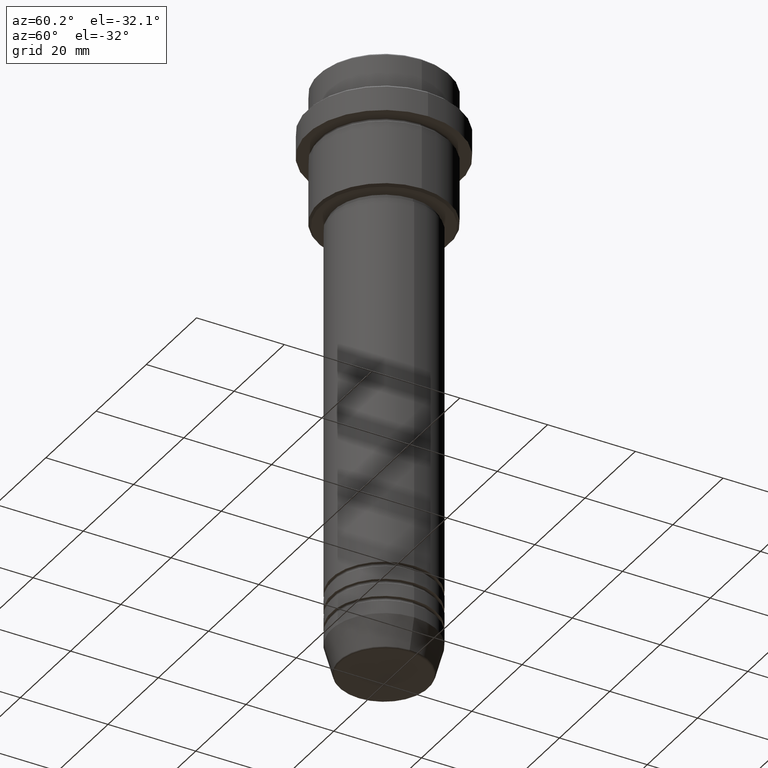
[diagram: clean part render]
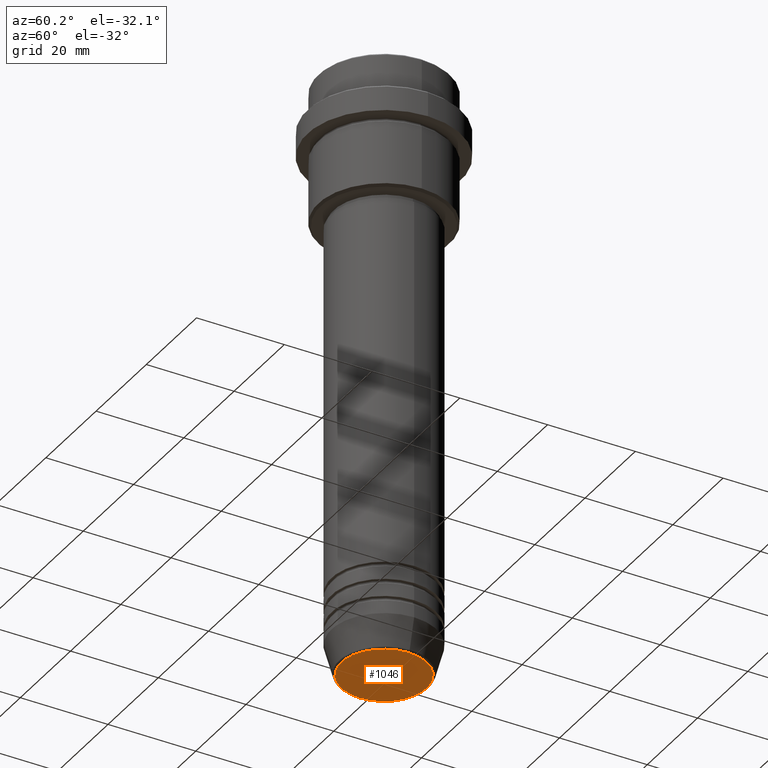
[diagram: same view with one face highlighted and labeled with its STEP entity id]
A machine part, auxiliary view. The second image highlights one B-rep face of the part: STEP entity #1046.
In plain terms, the highlighted planar face has unit normal (0, -0, 1).
Its self-contained STEP definition (entity closure, byte-faithful):
#51 = AXIS2_PLACEMENT_3D ( 'NONE', #787, #1213, #232 ) ;
#95 = CARTESIAN_POINT ( 'NONE',  ( 0.000000000000000000, 0.000000000000000000, -136.0000000000000000 ) ) ;
#232 = DIRECTION ( 'NONE',  ( 1.000000000000000000, 0.000000000000000000, 0.000000000000000000 ) ) ;
#429 = FACE_OUTER_BOUND ( 'NONE', #880, .T. ) ;
#536 = DIRECTION ( 'NONE',  ( 1.000000000000000000, 0.000000000000000000, 0.000000000000000000 ) ) ;
#551 = PLANE ( 'NONE',  #764 ) ;
#623 = CIRCLE ( 'NONE', #959, 9.740692158992658278 ) ;
#764 = AXIS2_PLACEMENT_3D ( 'NONE', #95, #1075, #536 ) ;
#787 = CARTESIAN_POINT ( 'NONE',  ( 0.000000000000000000, 0.000000000000000000, -136.0000000000000000 ) ) ;
#811 = CARTESIAN_POINT ( 'NONE',  ( 9.740692158992658278, 0.000000000000000000, -136.0000000000000000 ) ) ;
#830 = DIRECTION ( 'NONE',  ( 0.000000000000000000, 0.000000000000000000, -1.000000000000000000 ) ) ;
#838 = CARTESIAN_POINT ( 'NONE',  ( 0.000000000000000000, 0.000000000000000000, -136.0000000000000000 ) ) ;
#850 = VERTEX_POINT ( 'NONE', #811 ) ;
#880 = EDGE_LOOP ( 'NONE', ( #1235, #1130 ) ) ;
#886 = CARTESIAN_POINT ( 'NONE',  ( -9.740692158992658278, 1.222463696683474999E-15, -136.0000000000000000 ) ) ;
#942 = DIRECTION ( 'NONE',  ( 1.000000000000000000, 0.000000000000000000, 0.000000000000000000 ) ) ;
#959 = AXIS2_PLACEMENT_3D ( 'NONE', #838, #830, #942 ) ;
#999 = CIRCLE ( 'NONE', #51, 9.740692158992658278 ) ;
#1046 = ADVANCED_FACE ( 'NONE', ( #429 ), #551, .F. ) ;
#1075 = DIRECTION ( 'NONE',  ( 0.000000000000000000, -0.000000000000000000, 1.000000000000000000 ) ) ;
#1130 = ORIENTED_EDGE ( 'NONE', *, *, #1263, .T. ) ;
#1213 = DIRECTION ( 'NONE',  ( 0.000000000000000000, 0.000000000000000000, -1.000000000000000000 ) ) ;
#1222 = VERTEX_POINT ( 'NONE', #886 ) ;
#1235 = ORIENTED_EDGE ( 'NONE', *, *, #1330, .T. ) ;
#1263 = EDGE_CURVE ( 'NONE', #1222, #850, #999, .T. ) ;
#1330 = EDGE_CURVE ( 'NONE', #850, #1222, #623, .T. ) ;